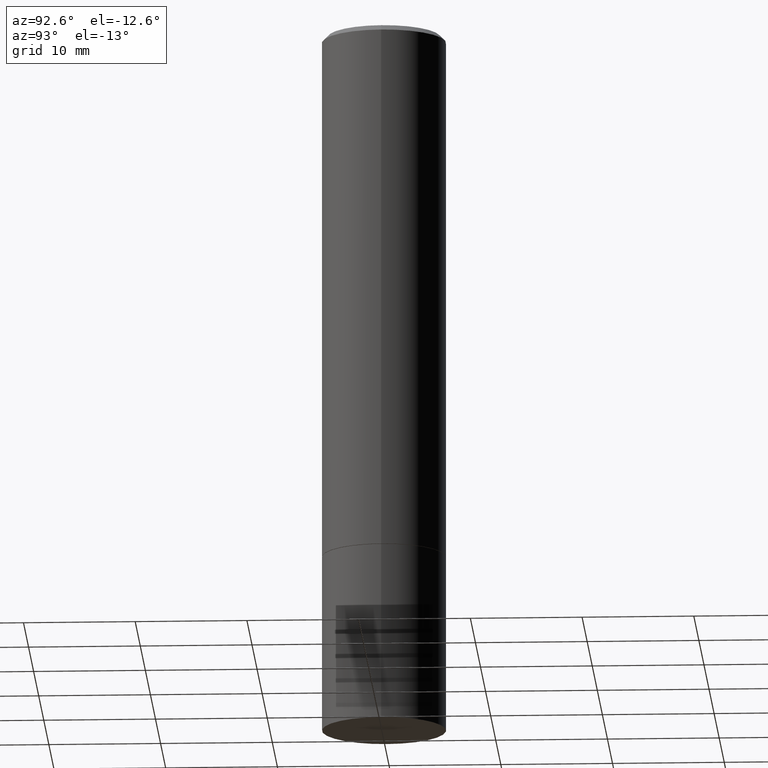
[diagram: clean part render]
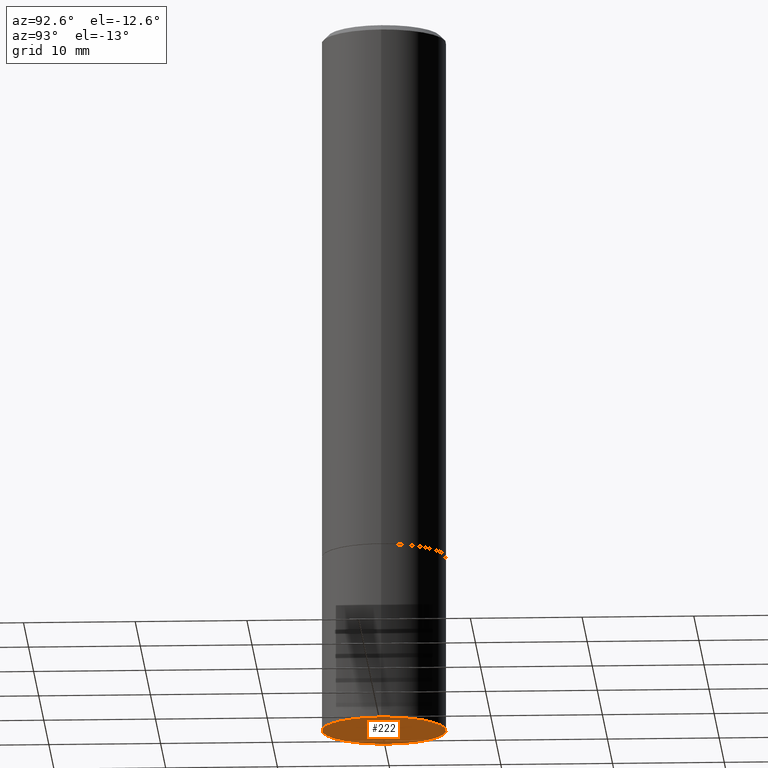
[diagram: same view with one face highlighted and labeled with its STEP entity id]
A machine part, auxiliary view. The second image highlights one B-rep face of the part: STEP entity #222.
In plain terms, the highlighted planar face has unit normal (0, -0, -1).
Its self-contained STEP definition (entity closure, byte-faithful):
#3 = AXIS2_PLACEMENT_3D ( 'NONE', #320, #345, #65 ) ;
#8 = EDGE_CURVE ( 'NONE', #352, #261, #10, .T. ) ;
#10 = CIRCLE ( 'NONE', #242, 0.2187500000000000000 ) ;
#23 = EDGE_LOOP ( 'NONE', ( #122, #326 ) ) ;
#29 = CIRCLE ( 'NONE', #66, 0.2187500000000000000 ) ;
#42 = EDGE_CURVE ( 'NONE', #261, #352, #29, .T. ) ;
#65 = DIRECTION ( 'NONE',  ( -1.000000000000000000, 6.982962677686265922E-15, -4.876176775795935793E-29 ) ) ;
#66 = AXIS2_PLACEMENT_3D ( 'NONE', #109, #223, #169 ) ;
#104 = CARTESIAN_POINT ( 'NONE',  ( -0.2187500000000000000, -6.083303194244162668E-15, -2.500000000000000000 ) ) ;
#109 = CARTESIAN_POINT ( 'NONE',  ( 6.113672015462842613E-29, -8.728703347107864943E-15, -2.500000000000000000 ) ) ;
#122 = ORIENTED_EDGE ( 'NONE', *, *, #42, .F. ) ;
#147 = FACE_OUTER_BOUND ( 'NONE', #23, .T. ) ;
#169 = DIRECTION ( 'NONE',  ( 1.000000000000000000, -6.982962677686267499E-15, 0.000000000000000000 ) ) ;
#191 = DIRECTION ( 'NONE',  ( -2.445468806185136597E-29, 3.491481338843145583E-15, 1.000000000000000000 ) ) ;
#222 = ADVANCED_FACE ( 'NONE', ( #147 ), #314, .T. ) ;
#223 = DIRECTION ( 'NONE',  ( -2.445468806185136597E-29, 3.491481338843145583E-15, 1.000000000000000000 ) ) ;
#239 = CARTESIAN_POINT ( 'NONE',  ( 6.113672015462842613E-29, -8.728703347107864943E-15, -2.500000000000000000 ) ) ;
#242 = AXIS2_PLACEMENT_3D ( 'NONE', #239, #191, #362 ) ;
#261 = VERTEX_POINT ( 'NONE', #299 ) ;
#299 = CARTESIAN_POINT ( 'NONE',  ( 0.2187500000000000000, -1.025622643285173500E-14, -2.500000000000000000 ) ) ;
#314 = PLANE ( 'NONE',  #3 ) ;
#320 = CARTESIAN_POINT ( 'NONE',  ( 1.527523085743931585E-15, 0.2187499999999912570, -2.500000000000000444 ) ) ;
#326 = ORIENTED_EDGE ( 'NONE', *, *, #8, .F. ) ;
#345 = DIRECTION ( 'NONE',  ( 2.438088387897960049E-29, -3.491481338843145188E-15, -1.000000000000000000 ) ) ;
#352 = VERTEX_POINT ( 'NONE', #104 ) ;
#362 = DIRECTION ( 'NONE',  ( 1.000000000000000000, -6.982962677686267499E-15, 0.000000000000000000 ) ) ;